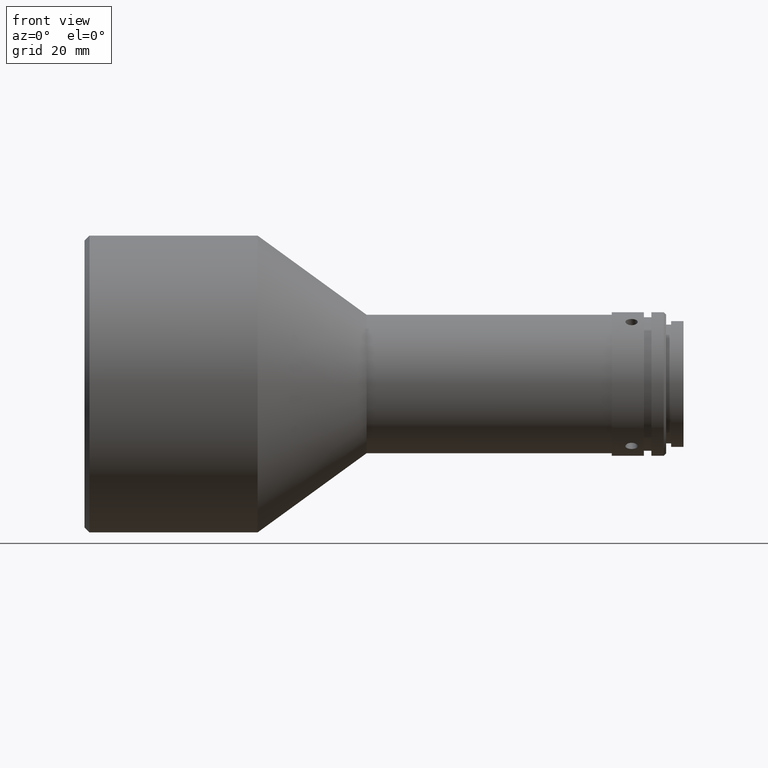
[diagram: clean part render]
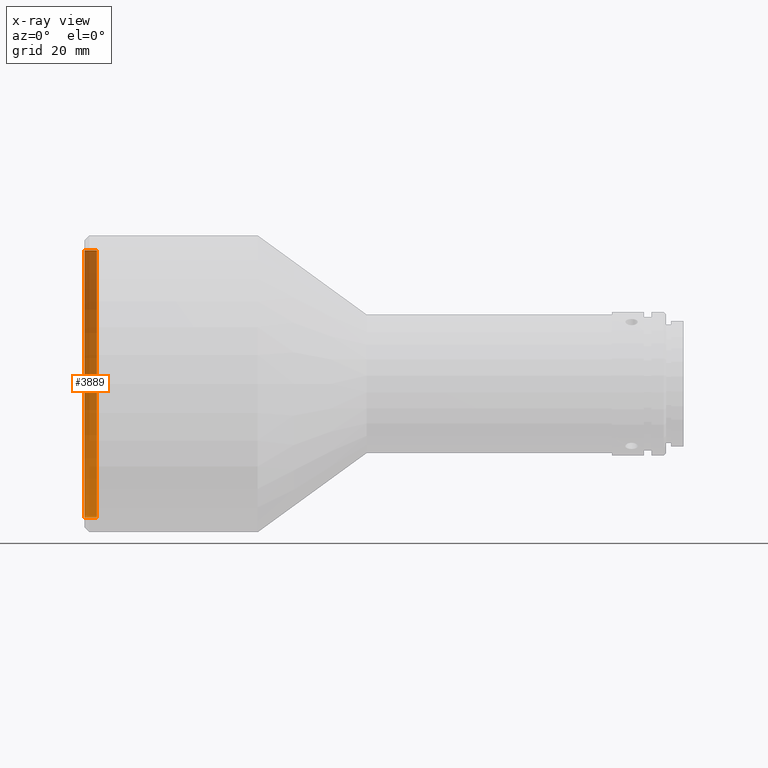
[diagram: x-ray — body ghosted, one internal face saturated and labeled with its STEP entity id]
A machine part, front view, then the same camera in x-ray: the body is ghosted and one INTERNAL B-rep face — a face not visible from any outside direction — is saturated and labeled: STEP entity #3889.
In plain terms, the highlighted cylindrical surface (partial cylindrical patch) has radius 27 mm, axis along (-1, -0, -0).
Its self-contained STEP definition (entity closure, byte-faithful):
#84 = EDGE_CURVE ( 'NONE', #1124, #3920, #1187, .T. ) ;
#110 = ORIENTED_EDGE ( 'NONE', *, *, #1688, .F. ) ;
#114 = LINE ( 'NONE', #2723, #1616 ) ;
#145 = LINE ( 'NONE', #3205, #850 ) ;
#154 = AXIS2_PLACEMENT_3D ( 'NONE', #2248, #3446, #1198 ) ;
#164 = ORIENTED_EDGE ( 'NONE', *, *, #2668, .T. ) ;
#179 = FACE_OUTER_BOUND ( 'NONE', #3082, .T. ) ;
#282 = AXIS2_PLACEMENT_3D ( 'NONE', #3491, #441, #2592 ) ;
#441 = DIRECTION ( 'NONE',  ( -1.000000000000000000, -0.0000000000000000000, -0.0000000000000000000 ) ) ;
#628 = AXIS2_PLACEMENT_3D ( 'NONE', #2927, #3523, #1695 ) ;
#850 = VECTOR ( 'NONE', #3909, 1000.000000000000000 ) ;
#993 = EDGE_CURVE ( 'NONE', #1124, #1123, #145, .T. ) ;
#1123 = VERTEX_POINT ( 'NONE', #2780 ) ;
#1124 = VERTEX_POINT ( 'NONE', #1969 ) ;
#1187 = CIRCLE ( 'NONE', #628, 27.00000000000000000 ) ;
#1198 = DIRECTION ( 'NONE',  ( 0.0000000000000000000, 0.0000000000000000000, 1.000000000000000000 ) ) ;
#1393 = ORIENTED_EDGE ( 'NONE', *, *, #993, .F. ) ;
#1591 = CYLINDRICAL_SURFACE ( 'NONE', #282, 27.00000000000000000 ) ;
#1616 = VECTOR ( 'NONE', #3027, 1000.000000000000000 ) ;
#1688 = EDGE_CURVE ( 'NONE', #1123, #3614, #3381, .T. ) ;
#1695 = DIRECTION ( 'NONE',  ( 0.0000000000000000000, 0.0000000000000000000, 1.000000000000000000 ) ) ;
#1969 = CARTESIAN_POINT ( 'NONE',  ( 2.500000000000002200, 0.0000000000000000000, 27.00000000000000000 ) ) ;
#2248 = CARTESIAN_POINT ( 'NONE',  ( 0.0000000000000000000, 0.0000000000000000000, 0.0000000000000000000 ) ) ;
#2592 = DIRECTION ( 'NONE',  ( 0.0000000000000000000, 0.0000000000000000000, 1.000000000000000000 ) ) ;
#2668 = EDGE_CURVE ( 'NONE', #3920, #3614, #114, .T. ) ;
#2723 = CARTESIAN_POINT ( 'NONE',  ( -32.77816834106168600, 3.306546357697853700E-015, -27.00000000000000000 ) ) ;
#2780 = CARTESIAN_POINT ( 'NONE',  ( 0.0000000000000000000, 0.0000000000000000000, 27.00000000000000000 ) ) ;
#2831 = ORIENTED_EDGE ( 'NONE', *, *, #84, .T. ) ;
#2927 = CARTESIAN_POINT ( 'NONE',  ( 2.500000000000002200, 0.0000000000000000000, 0.0000000000000000000 ) ) ;
#3027 = DIRECTION ( 'NONE',  ( -1.000000000000000000, -0.0000000000000000000, -0.0000000000000000000 ) ) ;
#3082 = EDGE_LOOP ( 'NONE', ( #2831, #164, #110, #1393 ) ) ;
#3205 = CARTESIAN_POINT ( 'NONE',  ( -32.77816834106168600, 0.0000000000000000000, 27.00000000000000000 ) ) ;
#3245 = CARTESIAN_POINT ( 'NONE',  ( 0.0000000000000000000, 3.306546357697853700E-015, -27.00000000000000000 ) ) ;
#3381 = CIRCLE ( 'NONE', #154, 27.00000000000000000 ) ;
#3446 = DIRECTION ( 'NONE',  ( -1.000000000000000000, -0.0000000000000000000, -0.0000000000000000000 ) ) ;
#3491 = CARTESIAN_POINT ( 'NONE',  ( -32.77816834106168600, 0.0000000000000000000, 0.0000000000000000000 ) ) ;
#3523 = DIRECTION ( 'NONE',  ( -1.000000000000000000, -0.0000000000000000000, -0.0000000000000000000 ) ) ;
#3614 = VERTEX_POINT ( 'NONE', #3245 ) ;
#3832 = CARTESIAN_POINT ( 'NONE',  ( 2.500000000000002200, 3.306546357697853700E-015, -27.00000000000000000 ) ) ;
#3889 = ADVANCED_FACE ( 'NONE', ( #179 ), #1591, .T. ) ;
#3909 = DIRECTION ( 'NONE',  ( -1.000000000000000000, -0.0000000000000000000, -0.0000000000000000000 ) ) ;
#3920 = VERTEX_POINT ( 'NONE', #3832 ) ;